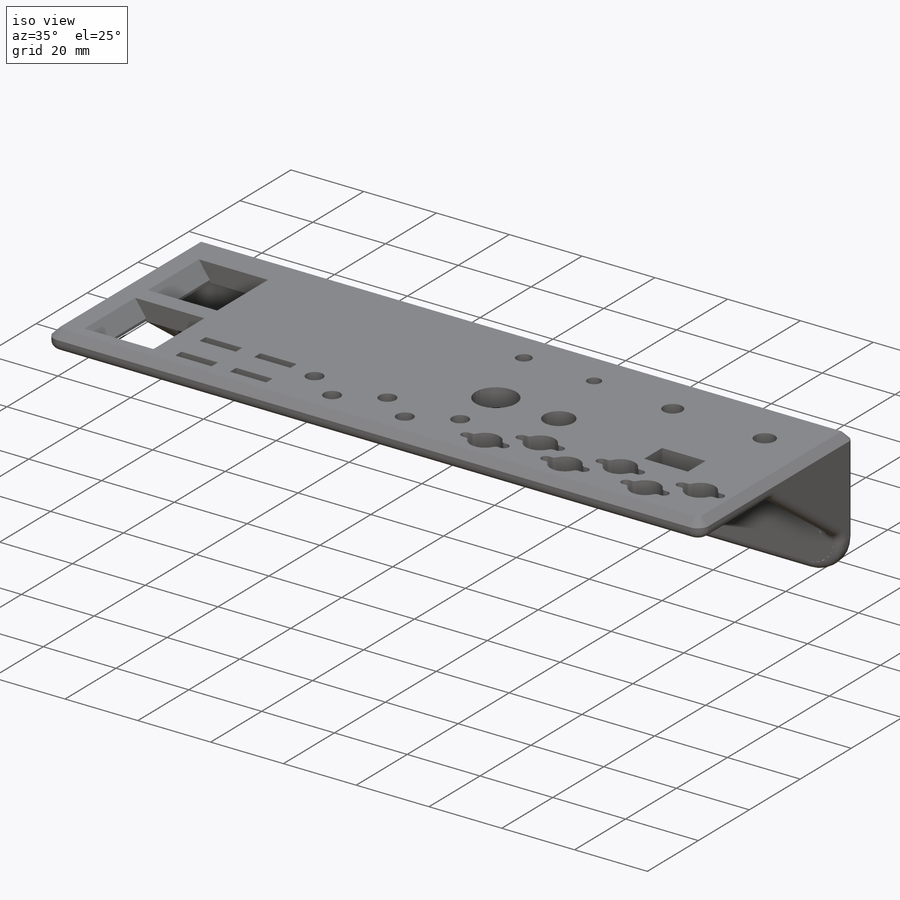
[diagram: iso view]
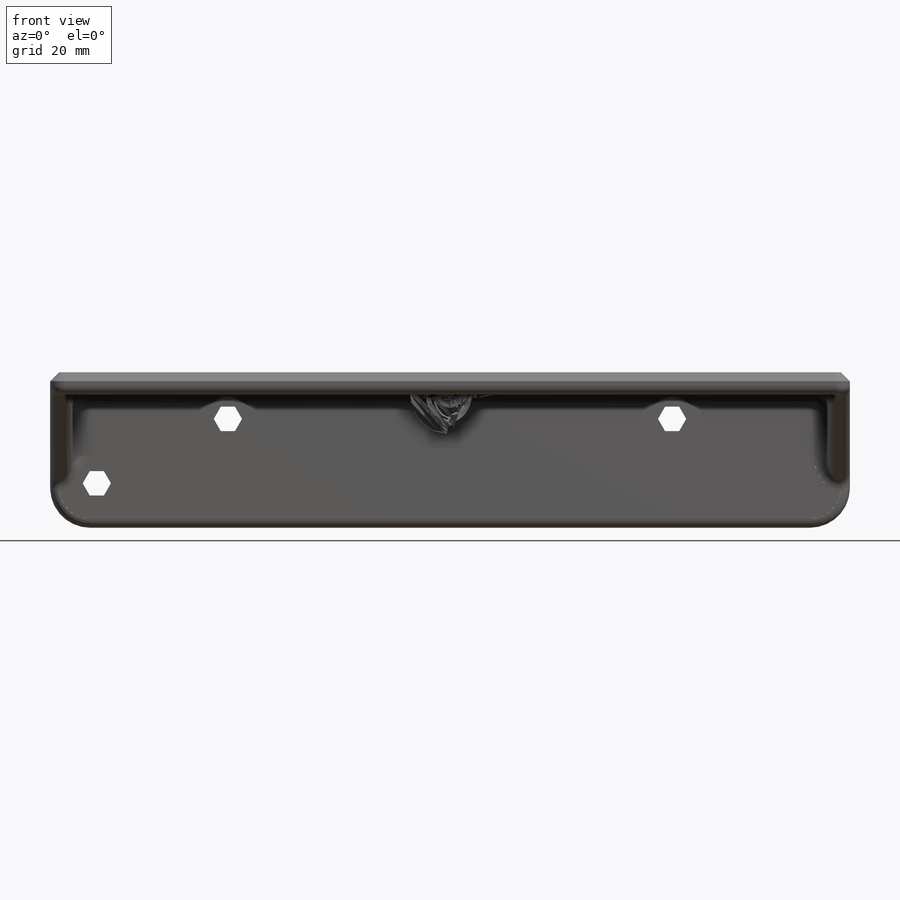
[diagram: front view]
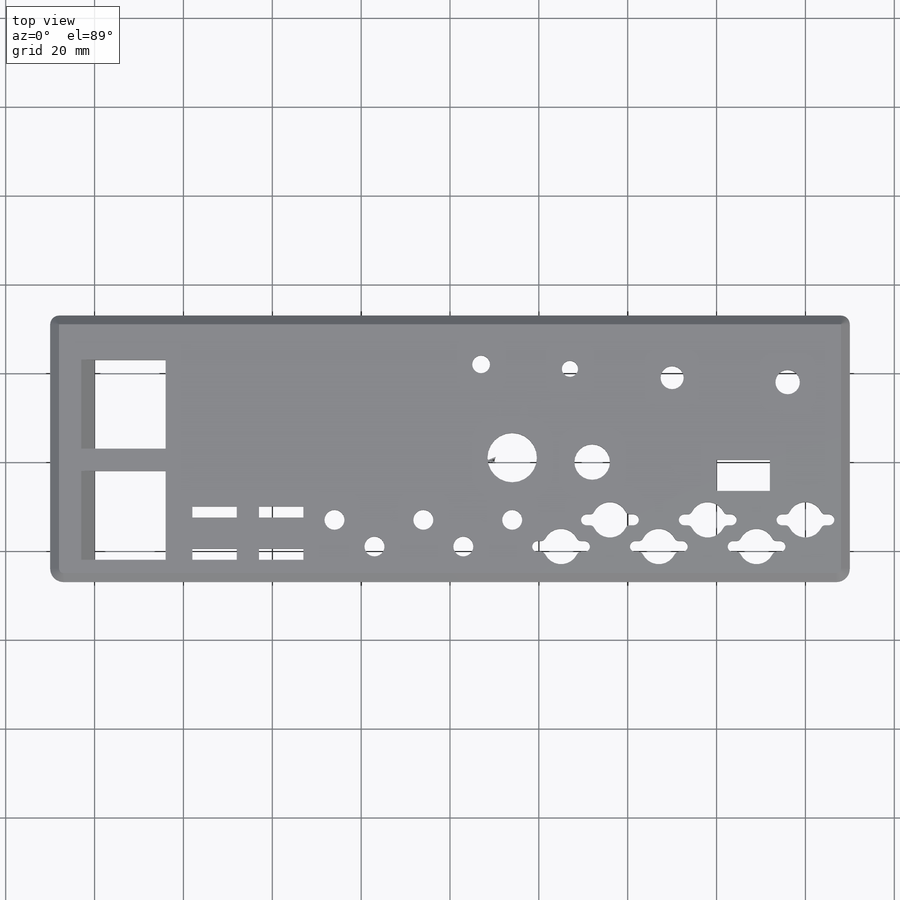
[diagram: top view]
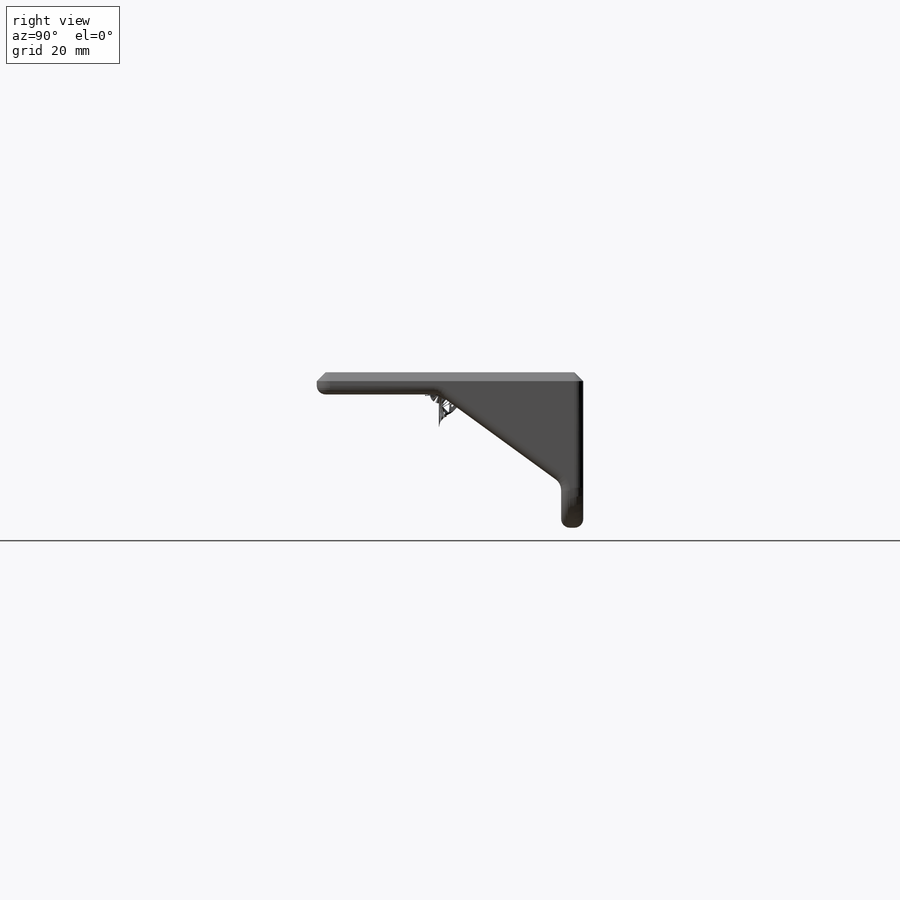
[diagram: right view]
SOLIDWORKS PART (.sldprt)
format: sldprt  version: not decoded by parser v0  size: 828,928 bytes
history: native  units: mm
features: sketch x5, fillet x4, extrude x3, chamfer x2, cut_extrude x2, material x1, plane x1, mirror x1 (+13 scaffold rows collapsed)
feature tree (32):
  scaffold x13  (default folders/planes/origin — collapsed)
  material  "ABS"
  sketch  "Sketch2"  dims[c1.D4=8.0mm c1.D5=2.5mm c1.D6=8.0mm c1.D7=8.0mm c1.D8=1.0mm c1.D14=5.5mm c1.D15=5.5mm c1.D16=5.5mm c1.D17=27.0mm c1.D21=5.2mm c1.D22=23.0mm c1.D23=23.0mm c2.D22=23.0mm c2.D23=5.2mm c2.D24=5.2mm c2.D25=3.64mm c2.D26=20.0mm c2.D27=5.2mm c3.D24=5.5mm c3.D27=5.2mm c3.D28=3.64mm c3.D29=4.0mm c3.D30=17.0mm c3.D31=4.0mm c3.D32=4.0mm c3.D7=4.0mm c3.D40=4.5mm c3.D41=4.0mm c3.D42=4.5mm c3.D43=4.0mm c3.D45=4.5mm c3.D49=8.0mm c3.D50=8.0mm c3.D52=11.13mm c3.D53=11.13mm c3.D54=11.13mm c3.D1=180.0mm c3.D2=58.0mm c3.D3=5.0mm c3.D6=8.0mm c4.D7=90.0mm c4.D10=11.0mm c4.D11=6.0mm c4.D13=22.0mm c4.D15=15.0mm c4.D16=14.0mm c4.D18=36.0mm c4.D19=41.0mm c4.D20=29.0mm c4.D23=14.0mm c4.D24=26.0mm c4.D27=~27.608291mm c5.D24=26.0mm c5.D27=23.0mm c5.D28=12.0mm c5.D31=20.0mm c5.D32=11.0mm c5.D7=10.0mm c5.D33=5.0mm c5.D34=16.0mm c5.D35=20.0mm c5.D36=10.0mm c5.D38=5.0mm c5.D39=5.0mm c5.D41=22.0mm c5.D43=22.0mm c5.D45=20.0mm c5.D46=12.0mm c5.D47=7.0mm c5.D48=24.0mm c5.D50=33.0mm c5.D51=34.0mm c5.D53=18.0mm c5.D54=32.0mm c5.D55=10.0mm c5.D56=2.5mm c5.D57=2.5mm c5.D58=7.0mm c5.D59=5.0mm c5.D60=6.0mm c5.D61=10.0mm c5.D9=2.0 c5.D12=3.0 c5.D37=2.0 c5.D44=4.0 c5.D62=2.0]
  extrude  "Boss-Extrude1"  Depth=5mm
  extrude  "Boss-Extrude2"  [1 undecoded]
  sketch  "Sketch2<3>"  dims[D1=30.0mm D2=5.0mm]
  sketch  "Sketch3"  dims[D1=20.0mm]
  extrude  "Boss-Extrude3"  Depth=5mm
  plane  "Plane1"
  mirror  "Mirror1"
  chamfer  "Chamfer1"  Distance=3mm Angle=55deg
  sketch  "Sketch4"  dims[c1.D1=~5.470927mm c1.D2=5.5mm c1.D3=5.5mm c1.D4=5.5mm c1.D5=5.5mm c1.D6=5.5mm c2.D1=50.0mm c2.D3=10.5mm c2.D5=10.5mm c2.D6=10.0mm]
  cut_extrude  "Cut-Extrude1"  [1 undecoded]
  fillet  "Fillet1"  Radius=9mm
  fillet  "Fillet2"  Radius=3mm
  fillet  "Fillet3"  Radius=2mm
  chamfer  "Chamfer2"  Distance=2mm Angle=45deg
  sketch  "Sketch6"  dims[D1=10.0mm]
  cut_extrude  "Cut-Extrude2"  Depth=5mm
  fillet  "Fillet4"  Radius=1mm
decode coverage: 14 of 17 modeling features carry decoded parameters
note: ~ marks probable driven/reference dimensions
note: 2 parameter values undecoded
note: suppression state not decoded; provenance and decode notes live in map.json
